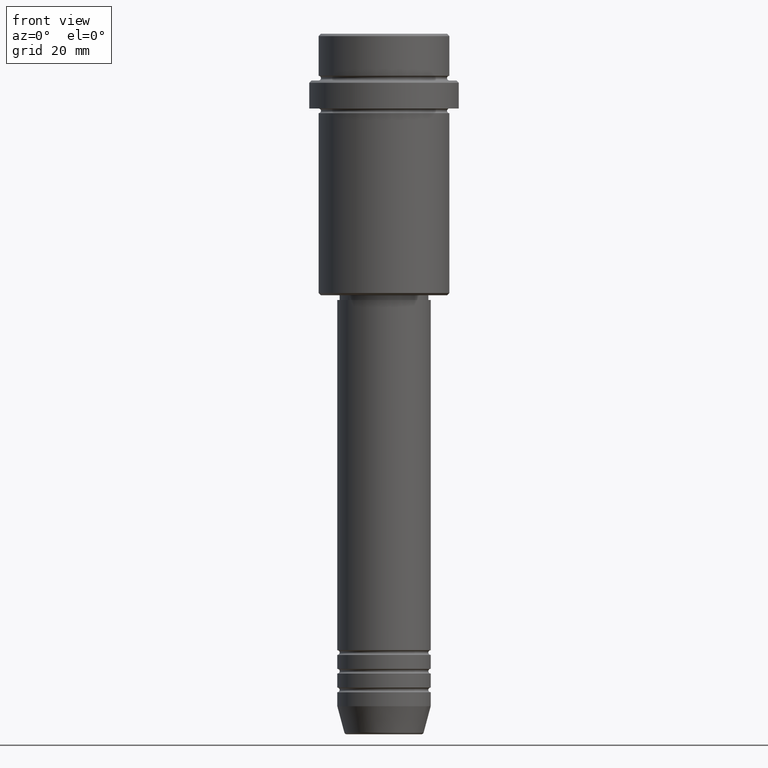
[diagram: clean part render]
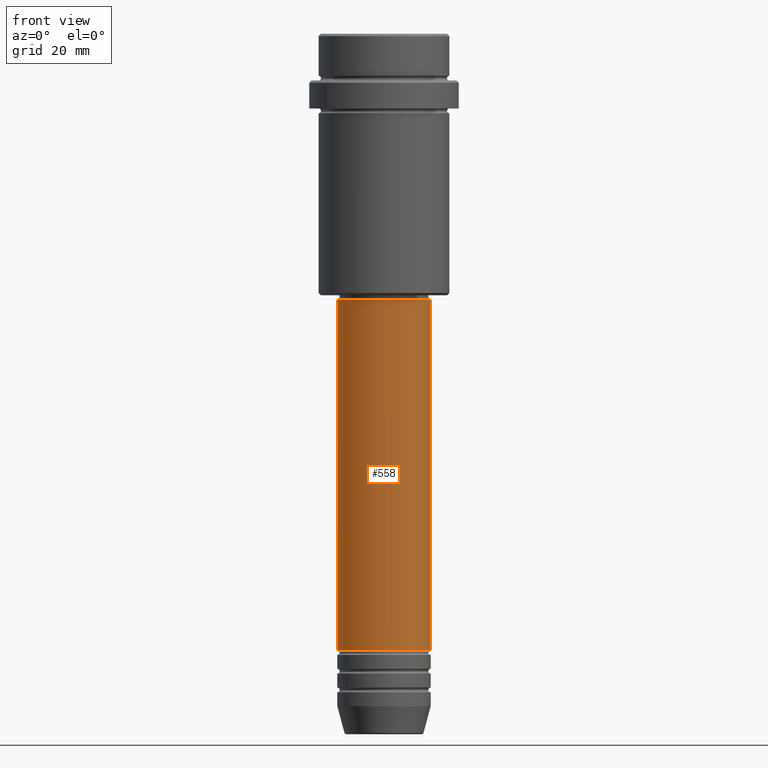
[diagram: same view with one face highlighted and labeled with its STEP entity id]
A machine part, front view. The second image highlights one B-rep face of the part: STEP entity #558.
In plain terms, the highlighted cylindrical surface (partial cylindrical patch) has radius 10 mm, axis along (-0, -0, 1).
Its self-contained STEP definition (entity closure, byte-faithful):
#13 = ORIENTED_EDGE ( 'NONE', *, *, #492, .F. ) ;
#58 = VERTEX_POINT ( 'NONE', #766 ) ;
#61 = FACE_OUTER_BOUND ( 'NONE', #639, .T. ) ;
#77 = DIRECTION ( 'NONE',  ( -0.000000000000000000, -0.000000000000000000, 1.000000000000000000 ) ) ;
#90 = AXIS2_PLACEMENT_3D ( 'NONE', #590, #278, #265 ) ;
#92 = CARTESIAN_POINT ( 'NONE',  ( -10.00000000000000178, 1.224646799147353454E-15, -57.00000000000000711 ) ) ;
#119 = DIRECTION ( 'NONE',  ( -0.000000000000000000, -0.000000000000000000, 1.000000000000000000 ) ) ;
#159 = CARTESIAN_POINT ( 'NONE',  ( 10.00000000000000178, 0.000000000000000000, -57.00000000000000711 ) ) ;
#170 = EDGE_CURVE ( 'NONE', #58, #1365, #1139, .T. ) ;
#173 = AXIS2_PLACEMENT_3D ( 'NONE', #1149, #916, #1022 ) ;
#216 = CARTESIAN_POINT ( 'NONE',  ( 0.000000000000000000, 0.000000000000000000, -131.9999999999998863 ) ) ;
#265 = DIRECTION ( 'NONE',  ( 1.000000000000000000, 0.000000000000000000, 0.000000000000000000 ) ) ;
#278 = DIRECTION ( 'NONE',  ( -0.000000000000000000, -0.000000000000000000, 1.000000000000000000 ) ) ;
#306 = ORIENTED_EDGE ( 'NONE', *, *, #667, .F. ) ;
#479 = VECTOR ( 'NONE', #605, 1000.000000000000000 ) ;
#492 = EDGE_CURVE ( 'NONE', #1257, #582, #837, .T. ) ;
#558 = ADVANCED_FACE ( 'NONE', ( #61 ), #593, .T. ) ;
#579 = VECTOR ( 'NONE', #77, 1000.000000000000000 ) ;
#582 = VERTEX_POINT ( 'NONE', #159 ) ;
#590 = CARTESIAN_POINT ( 'NONE',  ( 0.000000000000000000, 0.000000000000000000, -57.00000000000000711 ) ) ;
#593 = CYLINDRICAL_SURFACE ( 'NONE', #173, 10.00000000000000178 ) ;
#605 = DIRECTION ( 'NONE',  ( -0.000000000000000000, -0.000000000000000000, 1.000000000000000000 ) ) ;
#639 = EDGE_LOOP ( 'NONE', ( #306, #1356, #1409, #13 ) ) ;
#667 = EDGE_CURVE ( 'NONE', #58, #1257, #1289, .T. ) ;
#766 = CARTESIAN_POINT ( 'NONE',  ( -10.00000000000000000, 1.224646799147353256E-15, -131.9999999999998863 ) ) ;
#824 = CARTESIAN_POINT ( 'NONE',  ( 10.00000000000000000, 0.000000000000000000, -131.9999999999998863 ) ) ;
#837 = CIRCLE ( 'NONE', #90, 10.00000000000000178 ) ;
#846 = CARTESIAN_POINT ( 'NONE',  ( -10.00000000000000178, 1.224646799147353454E-15, 0.000000000000000000 ) ) ;
#916 = DIRECTION ( 'NONE',  ( -0.000000000000000000, -0.000000000000000000, 1.000000000000000000 ) ) ;
#950 = DIRECTION ( 'NONE',  ( 1.000000000000000000, 0.000000000000000000, 0.000000000000000000 ) ) ;
#1021 = AXIS2_PLACEMENT_3D ( 'NONE', #216, #119, #950 ) ;
#1022 = DIRECTION ( 'NONE',  ( 1.000000000000000000, 0.000000000000000000, 0.000000000000000000 ) ) ;
#1052 = LINE ( 'NONE', #1265, #579 ) ;
#1085 = EDGE_CURVE ( 'NONE', #1365, #582, #1052, .T. ) ;
#1139 = CIRCLE ( 'NONE', #1021, 10.00000000000000000 ) ;
#1149 = CARTESIAN_POINT ( 'NONE',  ( 0.000000000000000000, 0.000000000000000000, 0.000000000000000000 ) ) ;
#1257 = VERTEX_POINT ( 'NONE', #92 ) ;
#1265 = CARTESIAN_POINT ( 'NONE',  ( 10.00000000000000178, 0.000000000000000000, 0.000000000000000000 ) ) ;
#1289 = LINE ( 'NONE', #846, #479 ) ;
#1356 = ORIENTED_EDGE ( 'NONE', *, *, #170, .T. ) ;
#1365 = VERTEX_POINT ( 'NONE', #824 ) ;
#1409 = ORIENTED_EDGE ( 'NONE', *, *, #1085, .T. ) ;